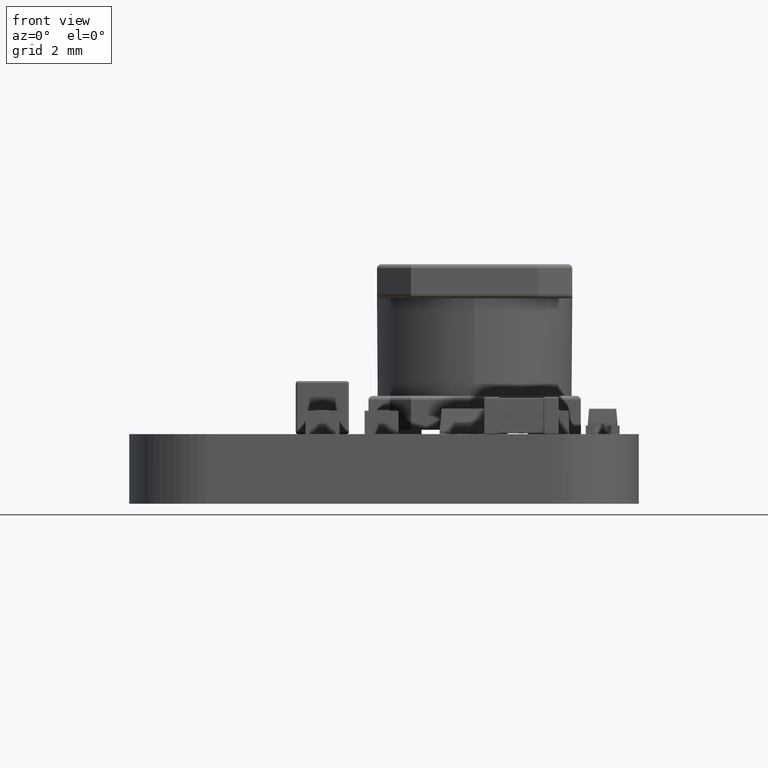
[diagram: clean part render]
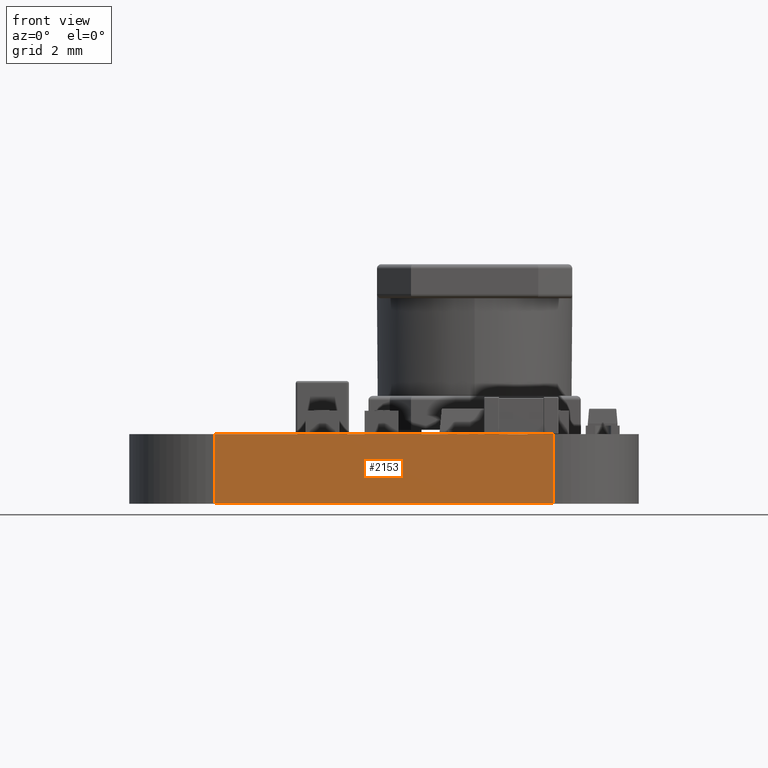
[diagram: same view with one face highlighted and labeled with its STEP entity id]
A machine part, front view. The second image highlights one B-rep face of the part: STEP entity #2153.
In plain terms, the highlighted planar face has unit normal (0, 1, 0).
Its self-contained STEP definition (entity closure, byte-faithful):
#2095 = EDGE_CURVE('',#2096,#2098,#2100,.T.);
#2096 = VERTEX_POINT('',#2097);
#2097 = CARTESIAN_POINT('',(10.,-11.,-0.82));
#2098 = VERTEX_POINT('',#2099);
#2099 = CARTESIAN_POINT('',(10.,-11.,0.82));
#2100 = LINE('',#2101,#2102);
#2101 = CARTESIAN_POINT('',(10.,-11.,-0.82));
#2102 = VECTOR('',#2103,1.);
#2103 = DIRECTION('',(0.,0.,1.));
#2128 = VERTEX_POINT('',#2129);
#2129 = CARTESIAN_POINT('',(2.,-11.,0.82));
#2135 = EDGE_CURVE('',#2136,#2128,#2138,.T.);
#2136 = VERTEX_POINT('',#2137);
#2137 = CARTESIAN_POINT('',(2.,-11.,-0.82));
#2138 = LINE('',#2139,#2140);
#2139 = CARTESIAN_POINT('',(2.,-11.,-0.82));
#2140 = VECTOR('',#2141,1.);
#2141 = DIRECTION('',(0.,0.,1.));
#2153 = ADVANCED_FACE('',(#2154),#2170,.F.);
#2154 = FACE_BOUND('',#2155,.F.);
#2155 = EDGE_LOOP('',(#2156,#2157,#2163,#2164));
#2156 = ORIENTED_EDGE('',*,*,#2135,.T.);
#2157 = ORIENTED_EDGE('',*,*,#2158,.T.);
#2158 = EDGE_CURVE('',#2128,#2098,#2159,.T.);
#2159 = LINE('',#2160,#2161);
#2160 = CARTESIAN_POINT('',(2.,-11.,0.82));
#2161 = VECTOR('',#2162,1.);
#2162 = DIRECTION('',(1.,0.,0.));
#2163 = ORIENTED_EDGE('',*,*,#2095,.F.);
#2164 = ORIENTED_EDGE('',*,*,#2165,.F.);
#2165 = EDGE_CURVE('',#2136,#2096,#2166,.T.);
#2166 = LINE('',#2167,#2168);
#2167 = CARTESIAN_POINT('',(2.,-11.,-0.82));
#2168 = VECTOR('',#2169,1.);
#2169 = DIRECTION('',(1.,0.,0.));
#2170 = PLANE('',#2171);
#2171 = AXIS2_PLACEMENT_3D('',#2172,#2173,#2174);
#2172 = CARTESIAN_POINT('',(2.,-11.,-0.82));
#2173 = DIRECTION('',(0.,1.,0.));
#2174 = DIRECTION('',(1.,0.,0.));